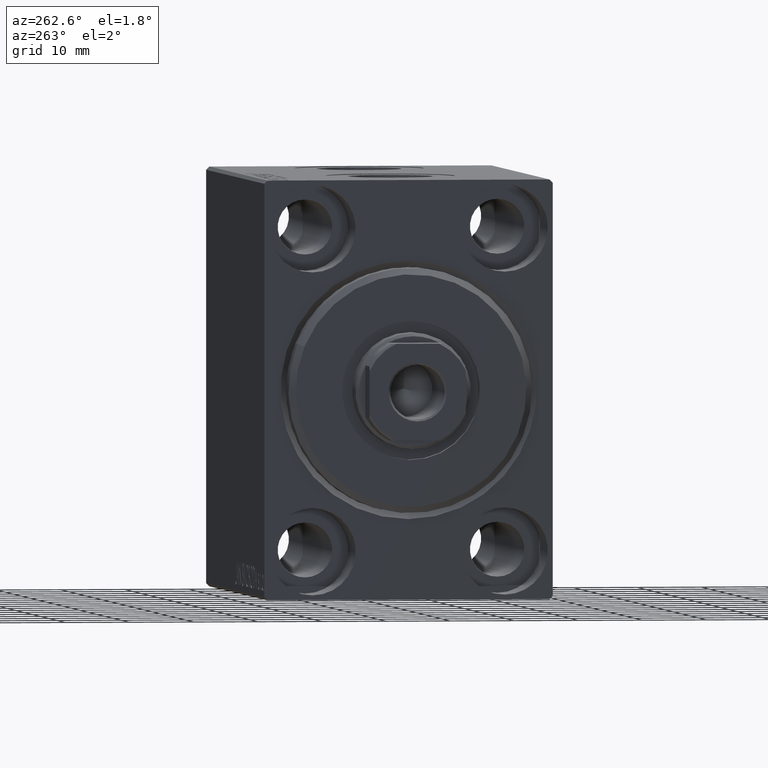
[diagram: clean part render]
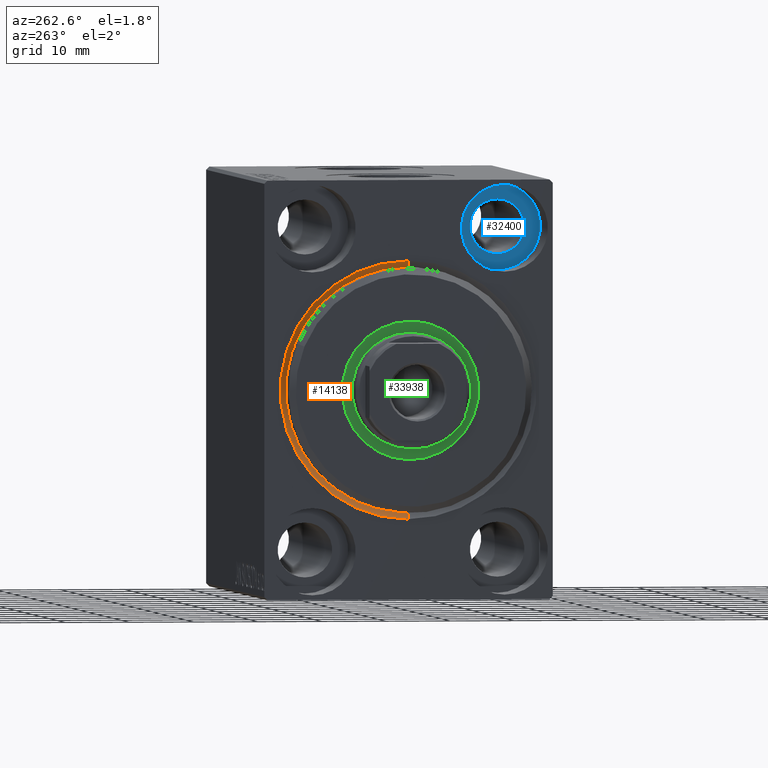
[diagram: same view with three faces highlighted in distinct colors, each labeled with its STEP entity id]
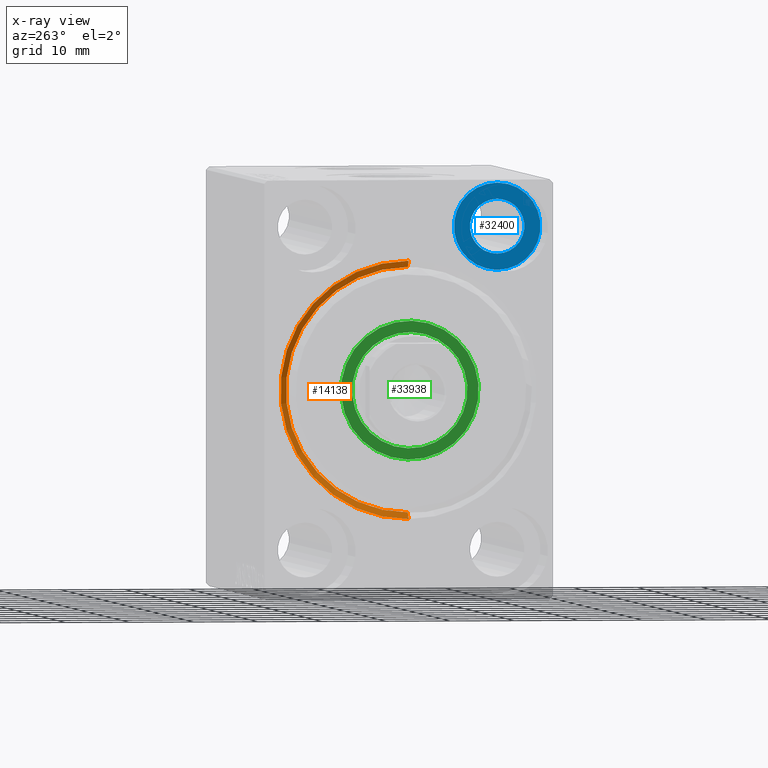
[diagram: x-ray of the same camera — body ghosted, the three highlighted faces saturated]
A machine part, auxiliary view with three faces highlighted in distinct colors.
The next image is the same camera in x-ray (body ghosted, the three faces saturated) — at least one of them is partly hidden behind the body in this view.
Their STEP definitions:

[orange] entity #14138 — the highlighted conical surface has half-angle 45 deg.
#1466 = CIRCLE ( 'NONE', #42684, 20.00000000000000355 ) ;
#1988 = CARTESIAN_POINT ( 'NONE',  ( 0.000000000000000000, 2.449293598294706907E-15, -20.00000000000000355 ) ) ;
#2303 = DIRECTION ( 'NONE',  ( -0.7071067811865463515, 0.000000000000000000, 0.7071067811865487940 ) ) ;
#3542 = DIRECTION ( 'NONE',  ( -0.7071067811865463515, 8.659560562354948882E-17, -0.7071067811865487940 ) ) ;
#4436 = DIRECTION ( 'NONE',  ( 0.000000000000000000, 0.000000000000000000, 1.000000000000000000 ) ) ;
#5197 = LINE ( 'NONE', #8737, #40188 ) ;
#5781 = VERTEX_POINT ( 'NONE', #10907 ) ;
#7470 = CONICAL_SURFACE ( 'NONE', #30168, 19.00000000000000000, 0.7853981633974500554 ) ;
#8737 = CARTESIAN_POINT ( 'NONE',  ( 1.000000000000000888, 0.000000000000000000, 19.00000000000000000 ) ) ;
#9440 = DIRECTION ( 'NONE',  ( 0.000000000000000000, 0.000000000000000000, -1.000000000000000000 ) ) ;
#9943 = VERTEX_POINT ( 'NONE', #12906 ) ;
#10907 = CARTESIAN_POINT ( 'NONE',  ( 1.000000000000000888, 0.000000000000000000, 19.00000000000000000 ) ) ;
#12647 = CARTESIAN_POINT ( 'NONE',  ( 0.000000000000000000, 0.000000000000000000, 0.000000000000000000 ) ) ;
#12906 = CARTESIAN_POINT ( 'NONE',  ( 0.000000000000000000, 0.000000000000000000, 20.00000000000000355 ) ) ;
#13441 = DIRECTION ( 'NONE',  ( -1.000000000000000000, 0.000000000000000000, 0.000000000000000000 ) ) ;
#13496 = EDGE_CURVE ( 'NONE', #5781, #19185, #19505, .T. ) ;
#13629 = VECTOR ( 'NONE', #3542, 1000.000000000000000 ) ;
#14138 = ADVANCED_FACE ( 'NONE', ( #14429 ), #7470, .F. ) ;
#14429 = FACE_OUTER_BOUND ( 'NONE', #35764, .T. ) ;
#15387 = ORIENTED_EDGE ( 'NONE', *, *, #25622, .F. ) ;
#19185 = VERTEX_POINT ( 'NONE', #39310 ) ;
#19505 = CIRCLE ( 'NONE', #32303, 19.00000000000000000 ) ;
#20349 = CARTESIAN_POINT ( 'NONE',  ( 1.000000000000000888, 0.000000000000000000, 0.000000000000000000 ) ) ;
#21400 = ORIENTED_EDGE ( 'NONE', *, *, #13496, .F. ) ;
#21981 = DIRECTION ( 'NONE',  ( -1.000000000000000000, 0.000000000000000000, 0.000000000000000000 ) ) ;
#24771 = ORIENTED_EDGE ( 'NONE', *, *, #28652, .F. ) ;
#25622 = EDGE_CURVE ( 'NONE', #41467, #9943, #1466, .T. ) ;
#26228 = DIRECTION ( 'NONE',  ( 1.000000000000000000, 0.000000000000000000, 0.000000000000000000 ) ) ;
#26905 = LINE ( 'NONE', #40702, #13629 ) ;
#28026 = CARTESIAN_POINT ( 'NONE',  ( 1.000000000000000888, 0.000000000000000000, 0.000000000000000000 ) ) ;
#28652 = EDGE_CURVE ( 'NONE', #19185, #41467, #26905, .T. ) ;
#30168 = AXIS2_PLACEMENT_3D ( 'NONE', #28026, #21981, #4436 ) ;
#32303 = AXIS2_PLACEMENT_3D ( 'NONE', #20349, #13441, #9440 ) ;
#35764 = EDGE_LOOP ( 'NONE', ( #24771, #21400, #39478, #15387 ) ) ;
#38970 = EDGE_CURVE ( 'NONE', #5781, #9943, #5197, .T. ) ;
#39310 = CARTESIAN_POINT ( 'NONE',  ( 1.000000000000000888, 2.326828918379970970E-15, -19.00000000000000000 ) ) ;
#39478 = ORIENTED_EDGE ( 'NONE', *, *, #38970, .T. ) ;
#40188 = VECTOR ( 'NONE', #2303, 1000.000000000000000 ) ;
#40702 = CARTESIAN_POINT ( 'NONE',  ( 1.000000000000000888, 2.326828918379970970E-15, -19.00000000000000000 ) ) ;
#41467 = VERTEX_POINT ( 'NONE', #1988 ) ;
#42684 = AXIS2_PLACEMENT_3D ( 'NONE', #12647, #26228, #43575 ) ;
#43575 = DIRECTION ( 'NONE',  ( 0.000000000000000000, 0.000000000000000000, -1.000000000000000000 ) ) ;

[blue] entity #32400 — the highlighted planar face has unit normal (-1, 0, 0).
#1087 = FACE_BOUND ( 'NONE', #32157, .T. ) ;
#1652 = AXIS2_PLACEMENT_3D ( 'NONE', #12004, #25584, #22247 ) ;
#1947 = CARTESIAN_POINT ( 'NONE',  ( 9.000000000000000000, 0.000000000000000000, 0.000000000000000000 ) ) ;
#2015 = VERTEX_POINT ( 'NONE', #35924 ) ;
#2555 = AXIS2_PLACEMENT_3D ( 'NONE', #20871, #38211, #27342 ) ;
#2769 = DIRECTION ( 'NONE',  ( -1.000000000000000000, 0.000000000000000000, 0.000000000000000000 ) ) ;
#5615 = ORIENTED_EDGE ( 'NONE', *, *, #20500, .T. ) ;
#8812 = ORIENTED_EDGE ( 'NONE', *, *, #33312, .F. ) ;
#10367 = CIRCLE ( 'NONE', #2555, 6.749999999999999112 ) ;
#10657 = AXIS2_PLACEMENT_3D ( 'NONE', #12553, #2769, #22782 ) ;
#12004 = CARTESIAN_POINT ( 'NONE',  ( 9.000000000000001776, -14.99999999999999645, 25.00000000000000000 ) ) ;
#12553 = CARTESIAN_POINT ( 'NONE',  ( 9.000000000000001776, -14.99999999999999645, 25.00000000000000000 ) ) ;
#14442 = CIRCLE ( 'NONE', #1652, 4.249999999999996447 ) ;
#16228 = EDGE_LOOP ( 'NONE', ( #28883, #5615 ) ) ;
#17261 = AXIS2_PLACEMENT_3D ( 'NONE', #1947, #31553, #24664 ) ;
#18448 = CARTESIAN_POINT ( 'NONE',  ( 9.000000000000000000, -14.99999999999999645, 18.25000000000000355 ) ) ;
#18452 = CARTESIAN_POINT ( 'NONE',  ( 9.000000000000000000, -14.99999999999999645, 25.00000000000000000 ) ) ;
#18466 = CIRCLE ( 'NONE', #10657, 4.249999999999996447 ) ;
#19693 = EDGE_CURVE ( 'NONE', #32659, #27316, #18466, .T. ) ;
#20500 = EDGE_CURVE ( 'NONE', #40669, #2015, #25601, .T. ) ;
#20871 = CARTESIAN_POINT ( 'NONE',  ( 9.000000000000000000, -14.99999999999999645, 25.00000000000000000 ) ) ;
#22247 = DIRECTION ( 'NONE',  ( 0.000000000000000000, 0.000000000000000000, 1.000000000000000000 ) ) ;
#22782 = DIRECTION ( 'NONE',  ( 0.000000000000000000, 0.000000000000000000, 1.000000000000000000 ) ) ;
#24664 = DIRECTION ( 'NONE',  ( 0.000000000000000000, 0.000000000000000000, 1.000000000000000000 ) ) ;
#24817 = CARTESIAN_POINT ( 'NONE',  ( 9.000000000000001776, -14.99999999999999645, 20.75000000000000355 ) ) ;
#25584 = DIRECTION ( 'NONE',  ( -1.000000000000000000, 0.000000000000000000, 0.000000000000000000 ) ) ;
#25601 = CIRCLE ( 'NONE', #27044, 6.749999999999999112 ) ;
#26225 = DIRECTION ( 'NONE',  ( 0.000000000000000000, 0.000000000000000000, 1.000000000000000000 ) ) ;
#27044 = AXIS2_PLACEMENT_3D ( 'NONE', #18452, #39791, #26225 ) ;
#27316 = VERTEX_POINT ( 'NONE', #40535 ) ;
#27342 = DIRECTION ( 'NONE',  ( 0.000000000000000000, 0.000000000000000000, 1.000000000000000000 ) ) ;
#28883 = ORIENTED_EDGE ( 'NONE', *, *, #40916, .T. ) ;
#31553 = DIRECTION ( 'NONE',  ( -1.000000000000000000, 0.000000000000000000, 0.000000000000000000 ) ) ;
#32157 = EDGE_LOOP ( 'NONE', ( #8812, #34904 ) ) ;
#32400 = ADVANCED_FACE ( 'NONE', ( #1087, #35529 ), #42651, .T. ) ;
#32659 = VERTEX_POINT ( 'NONE', #24817 ) ;
#33312 = EDGE_CURVE ( 'NONE', #27316, #32659, #14442, .T. ) ;
#34904 = ORIENTED_EDGE ( 'NONE', *, *, #19693, .F. ) ;
#35529 = FACE_OUTER_BOUND ( 'NONE', #16228, .T. ) ;
#35924 = CARTESIAN_POINT ( 'NONE',  ( 9.000000000000000000, -14.99999999999999645, 31.75000000000000000 ) ) ;
#38211 = DIRECTION ( 'NONE',  ( -1.000000000000000000, 0.000000000000000000, 0.000000000000000000 ) ) ;
#39791 = DIRECTION ( 'NONE',  ( -1.000000000000000000, 0.000000000000000000, 0.000000000000000000 ) ) ;
#40535 = CARTESIAN_POINT ( 'NONE',  ( 9.000000000000001776, -14.99999999999999645, 29.25000000000000000 ) ) ;
#40669 = VERTEX_POINT ( 'NONE', #18448 ) ;
#40916 = EDGE_CURVE ( 'NONE', #2015, #40669, #10367, .T. ) ;
#42651 = PLANE ( 'NONE',  #17261 ) ;

[green] entity #33938 — the highlighted planar face has unit normal (-1, 0, 0).
#590 = ORIENTED_EDGE ( 'NONE', *, *, #35955, .F. ) ;
#1519 = VERTEX_POINT ( 'NONE', #38496 ) ;
#3087 = DIRECTION ( 'NONE',  ( 0.000000000000000000, 0.000000000000000000, -1.000000000000000000 ) ) ;
#3291 = CIRCLE ( 'NONE', #18839, 9.000000000000000000 ) ;
#5209 = AXIS2_PLACEMENT_3D ( 'NONE', #31790, #38454, #21322 ) ;
#5293 = CARTESIAN_POINT ( 'NONE',  ( 1.500000000000000000, 0.000000000000000000, 0.000000000000000000 ) ) ;
#7755 = FACE_OUTER_BOUND ( 'NONE', #7839, .T. ) ;
#7839 = EDGE_LOOP ( 'NONE', ( #12001, #14574 ) ) ;
#8615 = PLANE ( 'NONE',  #5209 ) ;
#11743 = DIRECTION ( 'NONE',  ( 0.000000000000000000, 0.000000000000000000, -1.000000000000000000 ) ) ;
#11862 = DIRECTION ( 'NONE',  ( 1.000000000000000000, 0.000000000000000000, 0.000000000000000000 ) ) ;
#12001 = ORIENTED_EDGE ( 'NONE', *, *, #24986, .T. ) ;
#14574 = ORIENTED_EDGE ( 'NONE', *, *, #25283, .T. ) ;
#14649 = FACE_BOUND ( 'NONE', #28125, .T. ) ;
#14793 = DIRECTION ( 'NONE',  ( 0.000000000000000000, 0.000000000000000000, -1.000000000000000000 ) ) ;
#16418 = DIRECTION ( 'NONE',  ( 1.000000000000000000, 0.000000000000000000, 0.000000000000000000 ) ) ;
#16610 = CIRCLE ( 'NONE', #22293, 9.000000000000000000 ) ;
#18839 = AXIS2_PLACEMENT_3D ( 'NONE', #28786, #11862, #39005 ) ;
#19215 = CIRCLE ( 'NONE', #36265, 10.75000000000000000 ) ;
#19768 = CARTESIAN_POINT ( 'NONE',  ( 1.499999999999999556, 0.000000000000000000, 0.000000000000000000 ) ) ;
#19853 = CARTESIAN_POINT ( 'NONE',  ( 1.500000000000000000, 0.000000000000000000, 10.75000000000000000 ) ) ;
#21322 = DIRECTION ( 'NONE',  ( 0.000000000000000000, 0.000000000000000000, -1.000000000000000000 ) ) ;
#21391 = VERTEX_POINT ( 'NONE', #25616 ) ;
#21914 = DIRECTION ( 'NONE',  ( 1.000000000000000000, 0.000000000000000000, 0.000000000000000000 ) ) ;
#22293 = AXIS2_PLACEMENT_3D ( 'NONE', #19768, #16418, #3087 ) ;
#24986 = EDGE_CURVE ( 'NONE', #37871, #1519, #19215, .T. ) ;
#25283 = EDGE_CURVE ( 'NONE', #1519, #37871, #32021, .T. ) ;
#25528 = DIRECTION ( 'NONE',  ( 1.000000000000000000, 0.000000000000000000, 0.000000000000000000 ) ) ;
#25616 = CARTESIAN_POINT ( 'NONE',  ( 1.499999999999999556, 1.102182119232617517E-15, 9.000000000000000000 ) ) ;
#28125 = EDGE_LOOP ( 'NONE', ( #28597, #590 ) ) ;
#28597 = ORIENTED_EDGE ( 'NONE', *, *, #42331, .F. ) ;
#28601 = CARTESIAN_POINT ( 'NONE',  ( 1.500000000000000000, 0.000000000000000000, 0.000000000000000000 ) ) ;
#28786 = CARTESIAN_POINT ( 'NONE',  ( 1.499999999999999556, 0.000000000000000000, 0.000000000000000000 ) ) ;
#30594 = AXIS2_PLACEMENT_3D ( 'NONE', #28601, #21914, #14793 ) ;
#31790 = CARTESIAN_POINT ( 'NONE',  ( 1.500000000000000000, 0.000000000000000000, 0.000000000000000000 ) ) ;
#32021 = CIRCLE ( 'NONE', #30594, 10.75000000000000000 ) ;
#32122 = CARTESIAN_POINT ( 'NONE',  ( 1.499999999999999556, 0.000000000000000000, -9.000000000000000000 ) ) ;
#33938 = ADVANCED_FACE ( 'NONE', ( #14649, #7755 ), #8615, .T. ) ;
#35955 = EDGE_CURVE ( 'NONE', #21391, #38946, #16610, .T. ) ;
#36265 = AXIS2_PLACEMENT_3D ( 'NONE', #5293, #25528, #11743 ) ;
#37871 = VERTEX_POINT ( 'NONE', #19853 ) ;
#38454 = DIRECTION ( 'NONE',  ( 1.000000000000000000, 0.000000000000000000, 0.000000000000000000 ) ) ;
#38496 = CARTESIAN_POINT ( 'NONE',  ( 1.500000000000000000, 1.316495309083404223E-15, -10.75000000000000000 ) ) ;
#38946 = VERTEX_POINT ( 'NONE', #32122 ) ;
#39005 = DIRECTION ( 'NONE',  ( 0.000000000000000000, 0.000000000000000000, -1.000000000000000000 ) ) ;
#42331 = EDGE_CURVE ( 'NONE', #38946, #21391, #3291, .T. ) ;